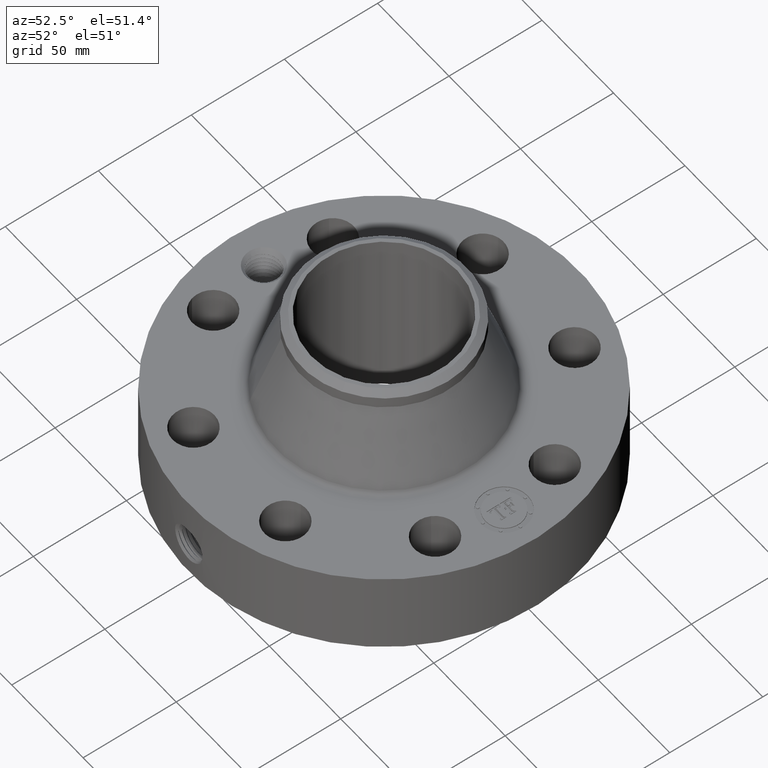
[diagram: clean part render]
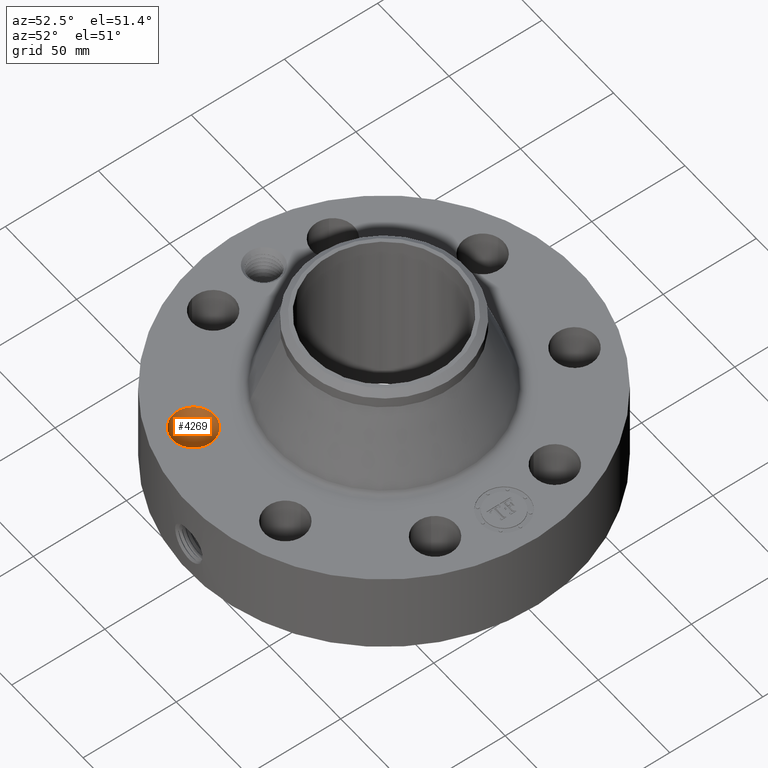
[diagram: same view with one face highlighted and labeled with its STEP entity id]
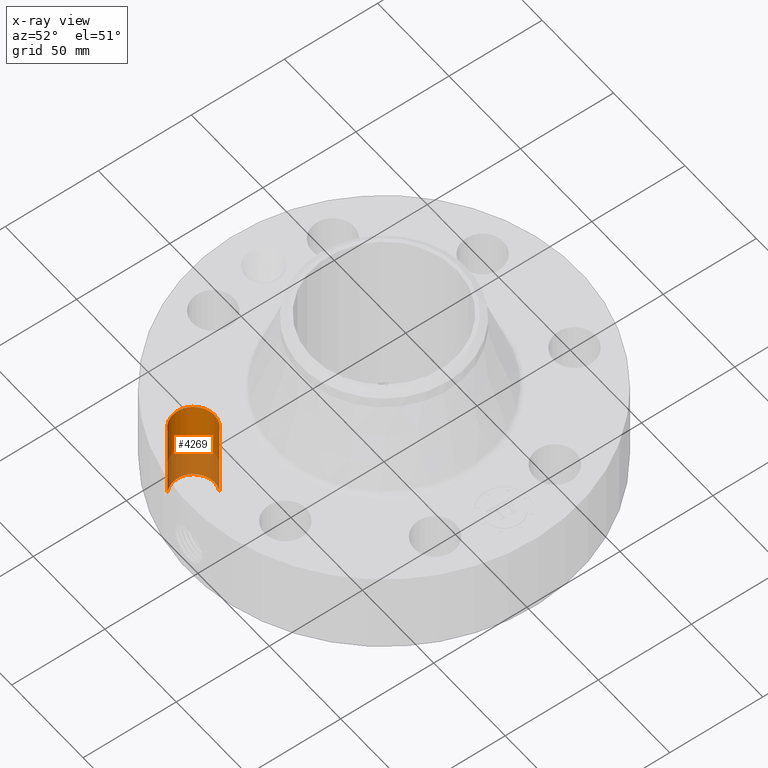
[diagram: x-ray of the same camera — body ghosted, the highlighted face saturated]
A machine part, auxiliary view. The second image highlights one B-rep face of the part: STEP entity #4269.
The next image is the same camera in x-ray: the body ghosted, the highlighted face saturated — about 43% of this face is hidden behind the body in this view.
In plain terms, the highlighted cylindrical surface (edge-blend (fillet) strip) has radius 11.176 mm, axis along (0, -0, -1).
Its self-contained STEP definition (entity closure, byte-faithful):
#2994=AXIS2_PLACEMENT_3D('Circle Axis2P3D',#2992,#2993,$) ;
#4230=AXIS2_PLACEMENT_3D('Cylinder Axis2P3D',#4227,#4228,#4229) ;
#4260=AXIS2_PLACEMENT_3D('Circle Axis2P3D',#4258,#4259,$) ;
#2992=CARTESIAN_POINT('Axis2P3D Location',(-1.26668216113,-3.05804125262,1.81200000001)) ;
#2996=CARTESIAN_POINT('Vertex',(-1.47762939812,-3.44417757986,1.81200000001)) ;
#2998=CARTESIAN_POINT('Vertex',(-1.05573492415,-2.67190492539,1.81200000001)) ;
#4227=CARTESIAN_POINT('Axis2P3D Location',(-1.26668216113,-3.05804125262,1.80806299213)) ;
#4232=CARTESIAN_POINT('Line Origine',(-1.05573492415,-2.67190492539,0.906000000004)) ;
#4236=CARTESIAN_POINT('Vertex',(-1.05573492415,-2.67190492539,0.)) ;
#4243=CARTESIAN_POINT('Vertex',(-1.47762939812,-3.44417757986,0.)) ;
#4246=CARTESIAN_POINT('Line Origine',(-1.47762939812,-3.44417757986,0.906000000004)) ;
#4258=CARTESIAN_POINT('Axis2P3D Location',(-1.26668216113,-3.05804125262,0.)) ;
#2993=DIRECTION('Axis2P3D Direction',(0.,0.,-0.0393700787402)) ;
#4228=DIRECTION('Axis2P3D Direction',(0.,-0.,-0.0393700787402)) ;
#4229=DIRECTION('Axis2P3D XDirection',(-0.0188750212049,-0.0345504945626,0.)) ;
#4233=DIRECTION('Vector Direction',(0.,0.,-0.0393700787402)) ;
#4247=DIRECTION('Vector Direction',(0.,0.,-0.0393700787402)) ;
#4259=DIRECTION('Axis2P3D Direction',(0.,-0.,-0.0393700787402)) ;
#4234=VECTOR('Line Direction',#4233,0.0393700787402) ;
#4248=VECTOR('Line Direction',#4247,0.0393700787402) ;
#4264=ORIENTED_EDGE('',*,*,#4250,.F.) ;
#4265=ORIENTED_EDGE('',*,*,#4262,.T.) ;
#4266=ORIENTED_EDGE('',*,*,#4238,.T.) ;
#4267=ORIENTED_EDGE('',*,*,#3000,.F.) ;
#4269=ADVANCED_FACE('PartBody',(#4268),#4231,.F.) ;
#2995=CIRCLE('generated circle',#2994,0.440000000002) ;
#4261=CIRCLE('generated circle',#4260,0.440000000002) ;
#4231=CYLINDRICAL_SURFACE('generated cylinder',#4230,0.440000000002) ;
#3000=EDGE_CURVE('',#2997,#2999,#2995,.T.) ;
#4238=EDGE_CURVE('',#4237,#2999,#4235,.F.) ;
#4250=EDGE_CURVE('',#4244,#2997,#4249,.F.) ;
#4262=EDGE_CURVE('',#4244,#4237,#4261,.T.) ;
#4263=EDGE_LOOP('',(#4264,#4265,#4266,#4267)) ;
#4268=FACE_OUTER_BOUND('',#4263,.T.) ;
#4235=LINE('Line',#4232,#4234) ;
#4249=LINE('Line',#4246,#4248) ;
#2997=VERTEX_POINT('',#2996) ;
#2999=VERTEX_POINT('',#2998) ;
#4237=VERTEX_POINT('',#4236) ;
#4244=VERTEX_POINT('',#4243) ;